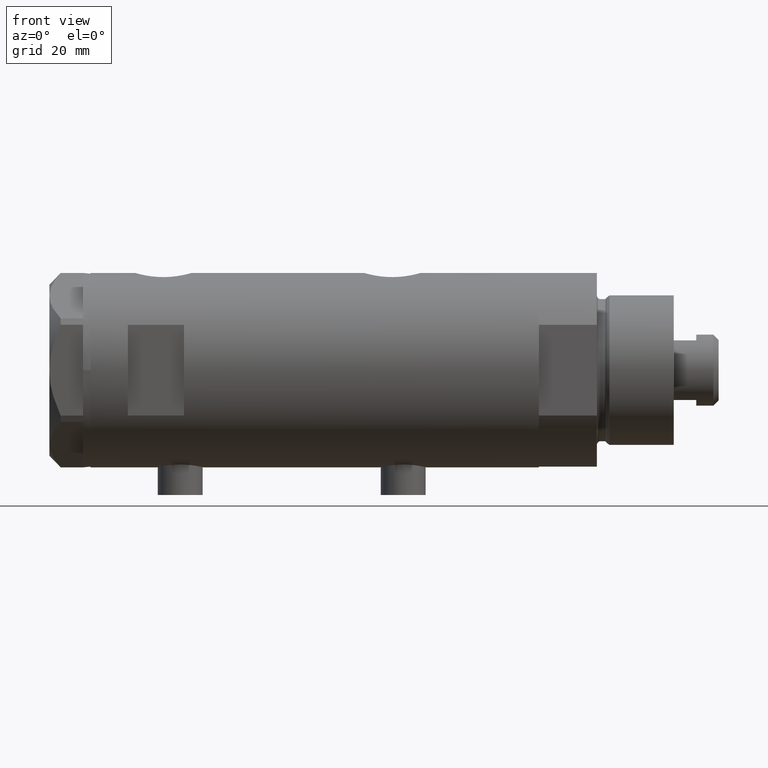
[diagram: clean part render]
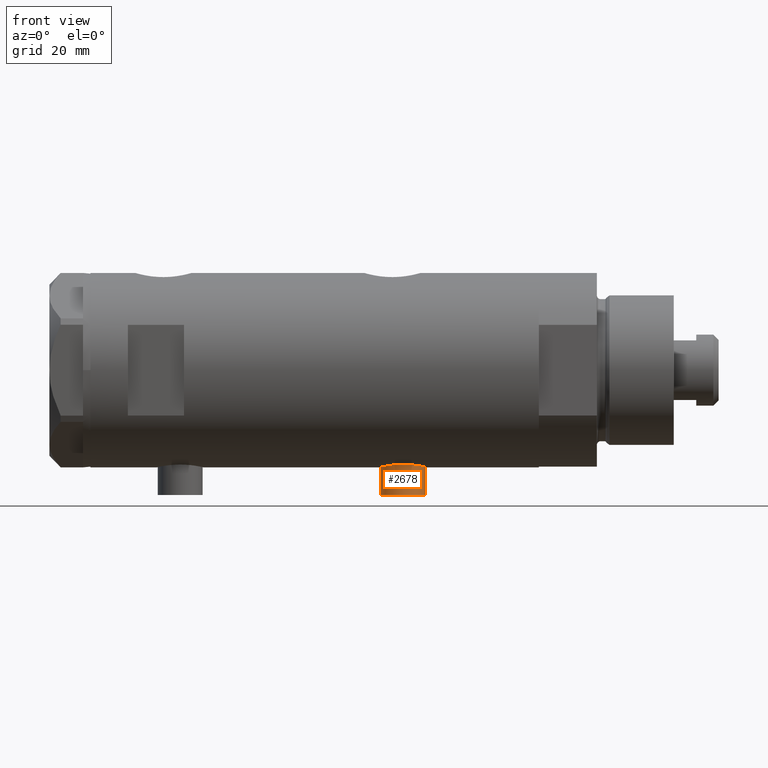
[diagram: same view with one face highlighted and labeled with its STEP entity id]
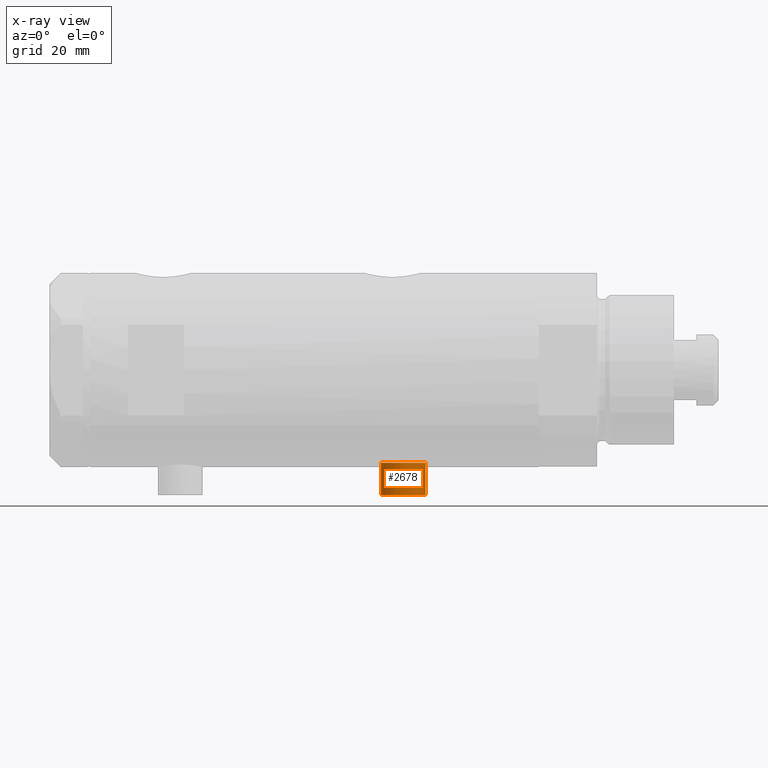
[diagram: x-ray of the same camera — body ghosted, the highlighted face saturated]
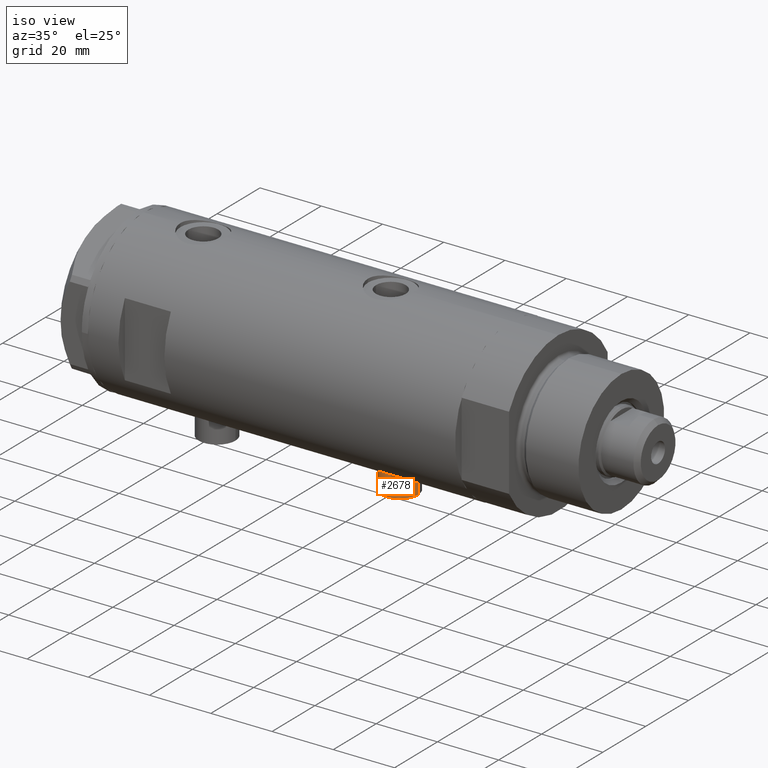
[diagram: same view with one face highlighted and labeled with its STEP entity id]
A machine part, front view. The second image highlights one B-rep face of the part: STEP entity #2678.
The next image is the same camera in x-ray: the body ghosted, the highlighted face saturated — about 0% of this face is hidden behind the body in this view.
A second angle (iso view) of the same face is appended — the face is thin or edge-on in the first view.
In plain terms, the highlighted cylindrical surface (edge-blend (fillet) strip) has radius 6 mm, axis along (0, 0, 1).
Its self-contained STEP definition (entity closure, byte-faithful):
#140 = VERTEX_POINT ( 'NONE', #3370 ) ;
#219 = VERTEX_POINT ( 'NONE', #3960 ) ;
#252 = CARTESIAN_POINT ( 'NONE',  ( -33.39999999999999858, 7.347880794884121708E-16, -17.67500000000000071 ) ) ;
#379 = DIRECTION ( 'NONE',  ( -1.000000000000000000, 0.000000000000000000, 0.000000000000000000 ) ) ;
#478 = DIRECTION ( 'NONE',  ( 1.000000000000000000, -0.000000000000000000, -0.000000000000000000 ) ) ;
#644 = CARTESIAN_POINT ( 'NONE',  ( -24.80000000000000426, 7.347880794884123680E-16, -17.67499999999999716 ) ) ;
#763 = CARTESIAN_POINT ( 'NONE',  ( -24.80000000000000426, 0.000000000000000000, -23.67500000000000071 ) ) ;
#855 = ORIENTED_EDGE ( 'NONE', *, *, #1803, .T. ) ;
#1130 = ORIENTED_EDGE ( 'NONE', *, *, #3615, .F. ) ;
#1246 = DIRECTION ( 'NONE',  ( -1.000000000000000000, 0.000000000000000000, 0.000000000000000000 ) ) ;
#1296 = ORIENTED_EDGE ( 'NONE', *, *, #4008, .T. ) ;
#1337 = CARTESIAN_POINT ( 'NONE',  ( -33.39999999999999858, 0.000000000000000000, -29.67500000000000426 ) ) ;
#1645 = AXIS2_PLACEMENT_3D ( 'NONE', #2333, #1246, #2832 ) ;
#1803 = EDGE_CURVE ( 'NONE', #219, #3768, #4416, .T. ) ;
#2079 = LINE ( 'NONE', #1337, #3690 ) ;
#2333 = CARTESIAN_POINT ( 'NONE',  ( -33.39999999999999858, 0.000000000000000000, -23.67500000000000071 ) ) ;
#2571 = CIRCLE ( 'NONE', #1645, 6.000000000000001776 ) ;
#2678 = ADVANCED_FACE ( 'NONE', ( #3554 ), #4799, .T. ) ;
#2718 = CARTESIAN_POINT ( 'NONE',  ( -33.39999999999999858, 0.000000000000000000, -23.67500000000000071 ) ) ;
#2832 = DIRECTION ( 'NONE',  ( 0.000000000000000000, 0.000000000000000000, 1.000000000000000000 ) ) ;
#3226 = AXIS2_PLACEMENT_3D ( 'NONE', #2718, #3502, #4293 ) ;
#3370 = CARTESIAN_POINT ( 'NONE',  ( -33.39999999999999858, 0.000000000000000000, -29.67500000000000782 ) ) ;
#3480 = EDGE_CURVE ( 'NONE', #140, #4006, #2571, .T. ) ;
#3502 = DIRECTION ( 'NONE',  ( 1.000000000000000000, -0.000000000000000000, -0.000000000000000000 ) ) ;
#3554 = FACE_OUTER_BOUND ( 'NONE', #3927, .T. ) ;
#3615 = EDGE_CURVE ( 'NONE', #4006, #3768, #4659, .T. ) ;
#3690 = VECTOR ( 'NONE', #478, 1000.000000000000000 ) ;
#3768 = VERTEX_POINT ( 'NONE', #644 ) ;
#3927 = EDGE_LOOP ( 'NONE', ( #1130, #3951, #1296, #855 ) ) ;
#3951 = ORIENTED_EDGE ( 'NONE', *, *, #3480, .F. ) ;
#3960 = CARTESIAN_POINT ( 'NONE',  ( -24.80000000000000426, 0.000000000000000000, -29.67500000000000782 ) ) ;
#4006 = VERTEX_POINT ( 'NONE', #4135 ) ;
#4008 = EDGE_CURVE ( 'NONE', #140, #219, #2079, .T. ) ;
#4135 = CARTESIAN_POINT ( 'NONE',  ( -33.39999999999999858, 7.347880794884123680E-16, -17.67499999999999716 ) ) ;
#4166 = VECTOR ( 'NONE', #4306, 1000.000000000000000 ) ;
#4293 = DIRECTION ( 'NONE',  ( 0.000000000000000000, 0.000000000000000000, -1.000000000000000000 ) ) ;
#4306 = DIRECTION ( 'NONE',  ( 1.000000000000000000, -0.000000000000000000, -0.000000000000000000 ) ) ;
#4416 = CIRCLE ( 'NONE', #4851, 6.000000000000001776 ) ;
#4659 = LINE ( 'NONE', #252, #4166 ) ;
#4799 = CYLINDRICAL_SURFACE ( 'NONE', #3226, 6.000000000000001776 ) ;
#4851 = AXIS2_PLACEMENT_3D ( 'NONE', #763, #379, #5133 ) ;
#5133 = DIRECTION ( 'NONE',  ( 0.000000000000000000, 0.000000000000000000, 1.000000000000000000 ) ) ;